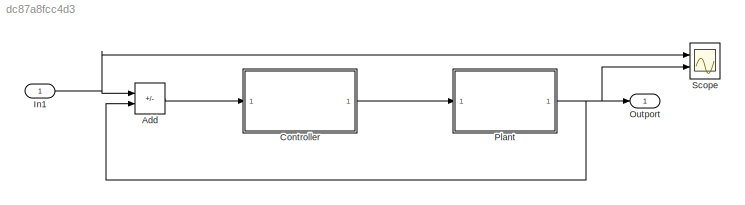
MODEL slx_dc87a8fcc4d3
KIND model
CONFIG AbsTol = auto
CONFIG EnableMultiTasking = off
CONFIG FixedStep = auto
CONFIG MaxStep = auto
CONFIG MinStep = auto
CONFIG PostLoadFcn = a = -3;\nb = -4;\nKp = 36;\nKi = 4;\nm = 25;\nt = [0:0.01:10]';\nTs = 0.01;\nstin = [zeros(floor((length(t)/2)+1),1) ; 5*ones(floor(length(t)/2),1)];
CONFIG RelTol = 1e-3
CONFIG SampleTimeConstraint = Unconstrained
CONFIG Solver = VariableStepAuto
CONFIG SolverName = VariableStepAuto
CONFIG StartTime = 0.0
CONFIG StopTime = 10
BLOCK [Sum] Add
  IconShape = rectangular
  Inputs = +-
  Ports = [2, 1]
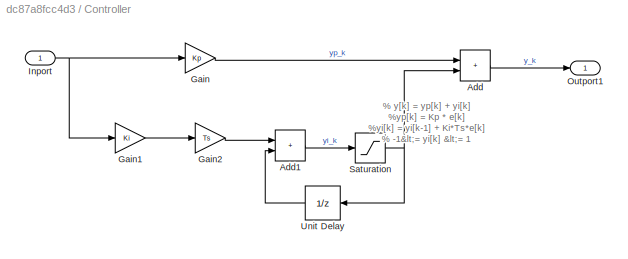
BLOCK [SubSystem] Controller
  Ports = [1, 1]
  RequestExecContextInheritance = off
BLOCK [Sum] Controller/Add
  IconShape = rectangular
  Ports = [2, 1]
BLOCK [Sum] Controller/Add1
  IconShape = rectangular
  Ports = [2, 1]
BLOCK [Gain] Controller/Gain
  Gain = Kp
BLOCK [Gain] Controller/Gain1
  Gain = Ki
BLOCK [Gain] Controller/Gain2
  Gain = Ts
BLOCK [Inport] Controller/Inport
BLOCK [Outport] Controller/Outport1
BLOCK [Saturate] Controller/Saturation
  LowerLimit = -1
  UpperLimit = 1
BLOCK [UnitDelay] Controller/Unit Delay
  HasFrameUpgradeWarning = on
  NameLocation = top
  SampleTime = -1
BLOCK [Inport] In1
BLOCK [Outport] Outport
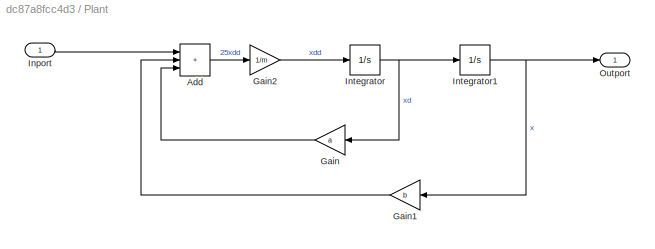
BLOCK [SubSystem] Plant
  Ports = [1, 1]
  RequestExecContextInheritance = off
BLOCK [Sum] Plant/Add
  IconShape = rectangular
  Inputs = +++
  Ports = [3, 1]
BLOCK [Gain] Plant/Gain
  Gain = a
  NameLocation = top
BLOCK [Gain] Plant/Gain1
  Gain = b
  NameLocation = top
BLOCK [Gain] Plant/Gain2
  Gain = 1/m
BLOCK [Inport] Plant/Inport
BLOCK [Integrator] Plant/Integrator
  Ports = [1, 1]
BLOCK [Integrator] Plant/Integrator1
  Ports = [1, 1]
BLOCK [Outport] Plant/Outport
BLOCK [Scope] Scope
  Floating = off
  NumInputPorts = 2
  Ports = [2]
  ScopeSpecificationString = Simulink.scopes.TimeScopeBlockCfg('CurrentConfiguration', extmgr.ConfigurationSet(extmgr.Configuration('Core','General UI',true),extmgr.Configuration('Core','Source UI',true),extmgr.Configuration('Sources','WiredSimulink',true),extmgr.Configuration('Visuals','Time Domain',true,'SerializedDisplays',{struct('MinYLimReal','-1.0236','MaxYLimReal','9.21236','YLabelReal','','MinYLimMag','0.00000','MaxYL...<+1433ch>
ANNOTATION Controller: % y[k] = yp[k] + yi[k] %yp[k] = Kp * e[k] %yi[k] = yi[k-1] + Ki*Ts*e[k] % -1<= yi[k] <= 1
LINE Add:1 -> Controller:1
LINE Controller/Add1:1 -> Controller/Saturation:1
LINE Controller/Add:1 -> Controller/Outport1:1
LINE Controller/Gain1:1 -> Controller/Gain2:1
LINE Controller/Gain2:1 -> Controller/Add1:1
LINE Controller/Gain:1 -> Controller/Add:1
NET Controller/Inport:1 -> Controller/Gain1:1, Controller/Gain:1
NET Controller/Saturation:1 -> Controller/Add:2, Controller/Unit Delay:1
LINE Controller/Unit Delay:1 -> Controller/Add1:2
LINE Controller:1 -> Plant:1
NET In1:1 -> Add:1, Scope:1
LINE Plant/Add:1 -> Plant/Gain2:1
LINE Plant/Gain1:1 -> Plant/Add:2
LINE Plant/Gain2:1 -> Plant/Integrator:1
LINE Plant/Gain:1 -> Plant/Add:3
LINE Plant/Inport:1 -> Plant/Add:1
NET Plant/Integrator1:1 -> Plant/Gain1:1, Plant/Outport:1
NET Plant/Integrator:1 -> Plant/Gain:1, Plant/Integrator1:1
NET Plant:1 -> Add:2, Outport:1, Scope:2
note: NET lines group one-source signal fan-out (src -> all destinations, sorted); 1:1 wires keep LINE
